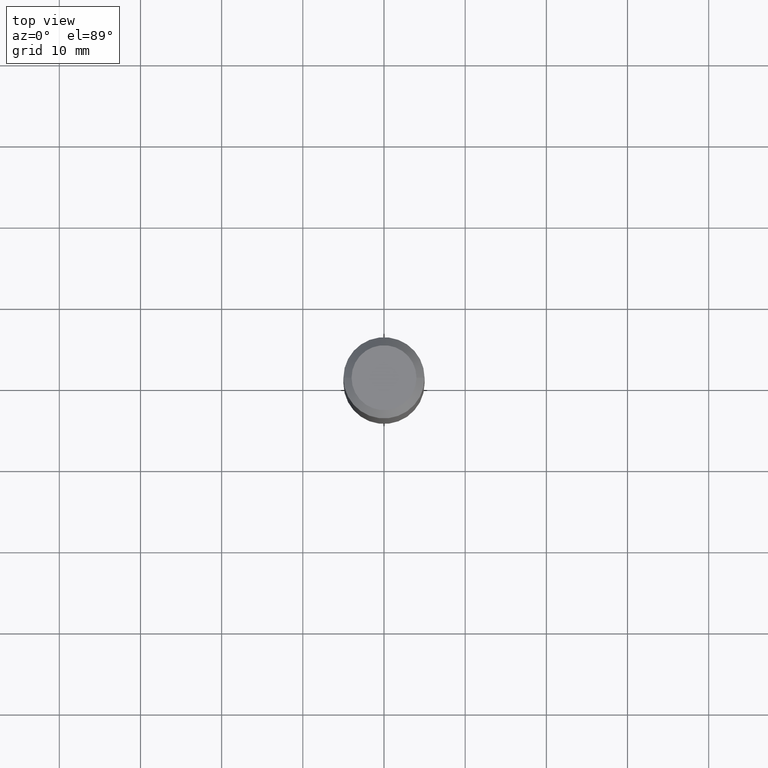
[diagram: clean part render]
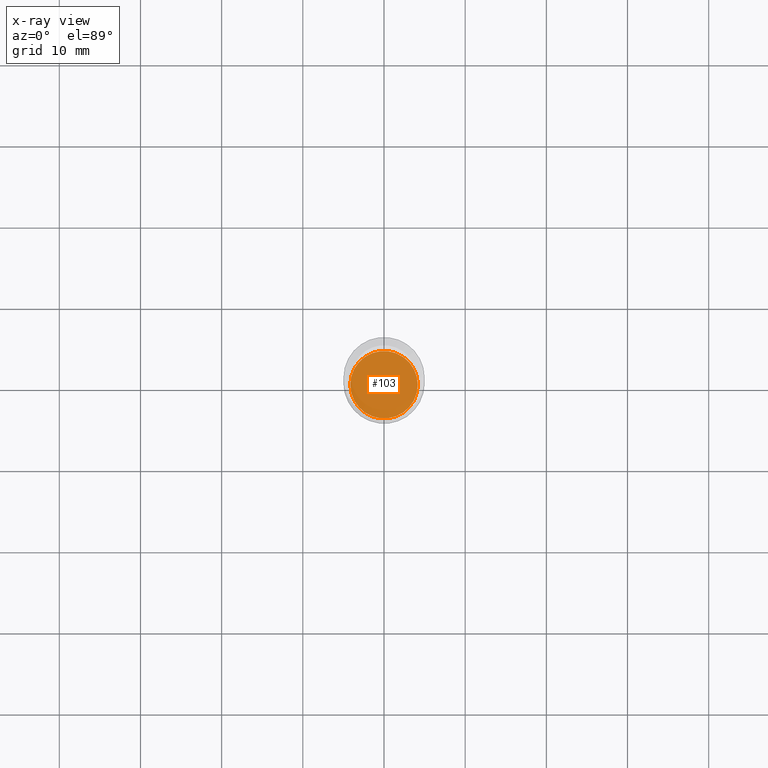
[diagram: x-ray — body ghosted, one internal face saturated and labeled with its STEP entity id]
A machine part, top view, then the same camera in x-ray: the body is ghosted and one INTERNAL B-rep face — a face not visible from any outside direction — is saturated and labeled: STEP entity #103.
In plain terms, the highlighted planar face has unit normal (-0, 0, 1).
Its self-contained STEP definition (entity closure, byte-faithful):
#5 = CARTESIAN_POINT ( 'NONE',  ( 4.845940986336466171E-29, -6.918719421051576678E-15, -1.981599999999999806 ) ) ;
#15 = CIRCLE ( 'NONE', #258, 0.1635500000000000009 ) ;
#21 = VERTEX_POINT ( 'NONE', #238 ) ;
#22 = AXIS2_PLACEMENT_3D ( 'NONE', #375, #369, #489 ) ;
#59 = ORIENTED_EDGE ( 'NONE', *, *, #256, .F. ) ;
#103 = ADVANCED_FACE ( 'NONE', ( #328 ), #402, .F. ) ;
#114 = DIRECTION ( 'NONE',  ( -2.445468806185136597E-29, 3.491481338843145583E-15, 1.000000000000000000 ) ) ;
#150 = CARTESIAN_POINT ( 'NONE',  ( -0.1635500000000000009, -5.753977549541821814E-15, -1.981599999999999806 ) ) ;
#227 = DIRECTION ( 'NONE',  ( -2.445468806185136597E-29, 3.491481338843145583E-15, 1.000000000000000000 ) ) ;
#238 = CARTESIAN_POINT ( 'NONE',  ( 0.1635500000000000009, -8.060782966987165334E-15, -1.981599999999999806 ) ) ;
#256 = EDGE_CURVE ( 'NONE', #321, #21, #15, .T. ) ;
#258 = AXIS2_PLACEMENT_3D ( 'NONE', #261, #227, #411 ) ;
#261 = CARTESIAN_POINT ( 'NONE',  ( 4.845940986336466171E-29, -6.918719421051576678E-15, -1.981599999999999806 ) ) ;
#263 = DIRECTION ( 'NONE',  ( 1.000000000000000000, -6.982962677686265922E-15, 0.000000000000000000 ) ) ;
#269 = EDGE_LOOP ( 'NONE', ( #273, #59 ) ) ;
#273 = ORIENTED_EDGE ( 'NONE', *, *, #329, .F. ) ;
#314 = AXIS2_PLACEMENT_3D ( 'NONE', #5, #114, #263 ) ;
#321 = VERTEX_POINT ( 'NONE', #150 ) ;
#323 = CIRCLE ( 'NONE', #314, 0.1635500000000000009 ) ;
#328 = FACE_OUTER_BOUND ( 'NONE', #269, .T. ) ;
#329 = EDGE_CURVE ( 'NONE', #21, #321, #323, .T. ) ;
#369 = DIRECTION ( 'NONE',  ( -2.438088387897960049E-29, 3.491481338843145188E-15, 1.000000000000000000 ) ) ;
#375 = CARTESIAN_POINT ( 'NONE',  ( 4.845940986336466171E-29, -6.918719421051576678E-15, -1.981599999999999806 ) ) ;
#402 = PLANE ( 'NONE',  #22 ) ;
#411 = DIRECTION ( 'NONE',  ( 1.000000000000000000, -6.982962677686265922E-15, 0.000000000000000000 ) ) ;
#489 = DIRECTION ( 'NONE',  ( 1.000000000000000000, -6.982962677686265922E-15, 4.876176775795935793E-29 ) ) ;